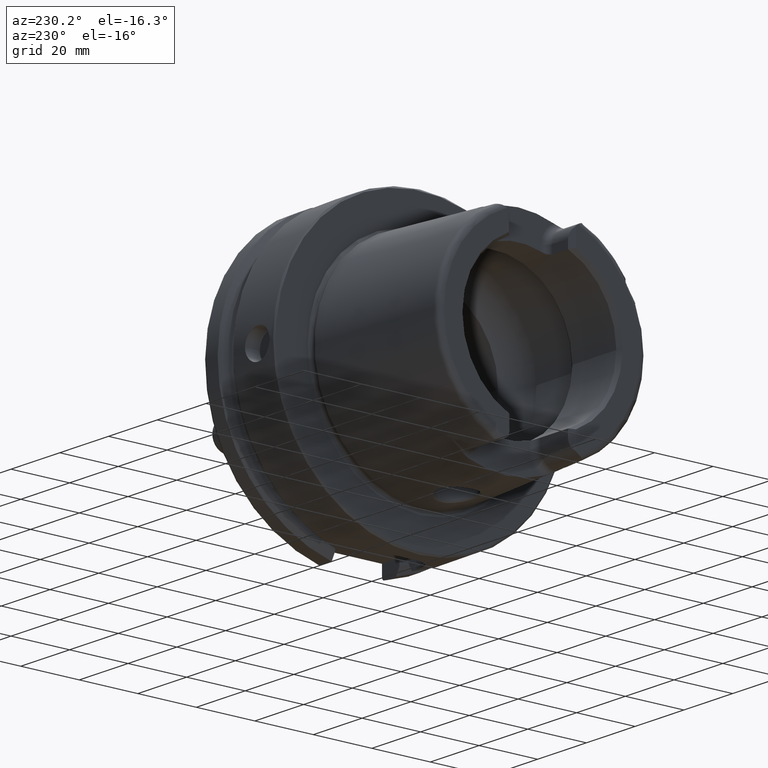
[diagram: clean part render]
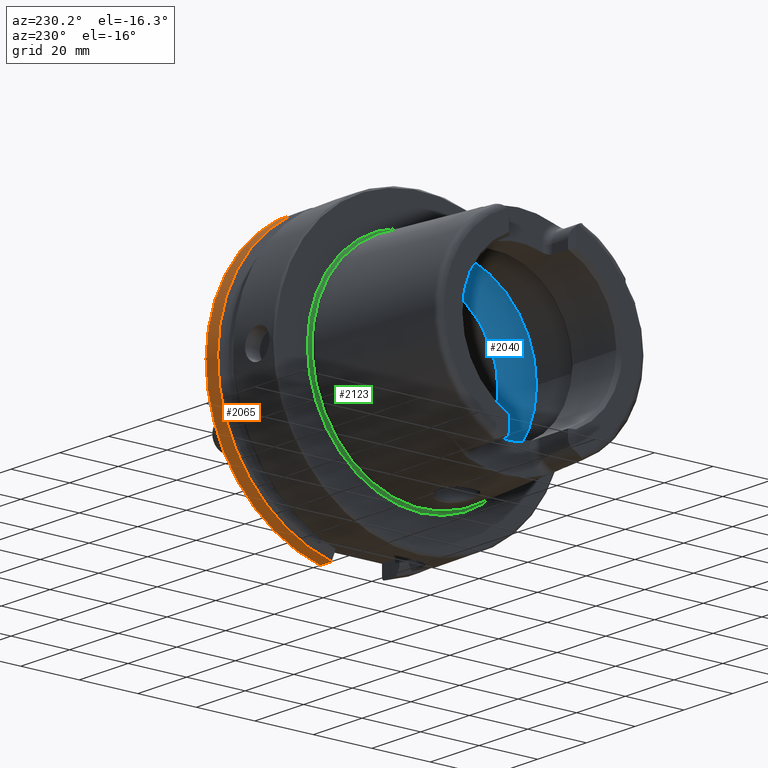
[diagram: same view with three faces highlighted in distinct colors, each labeled with its STEP entity id]
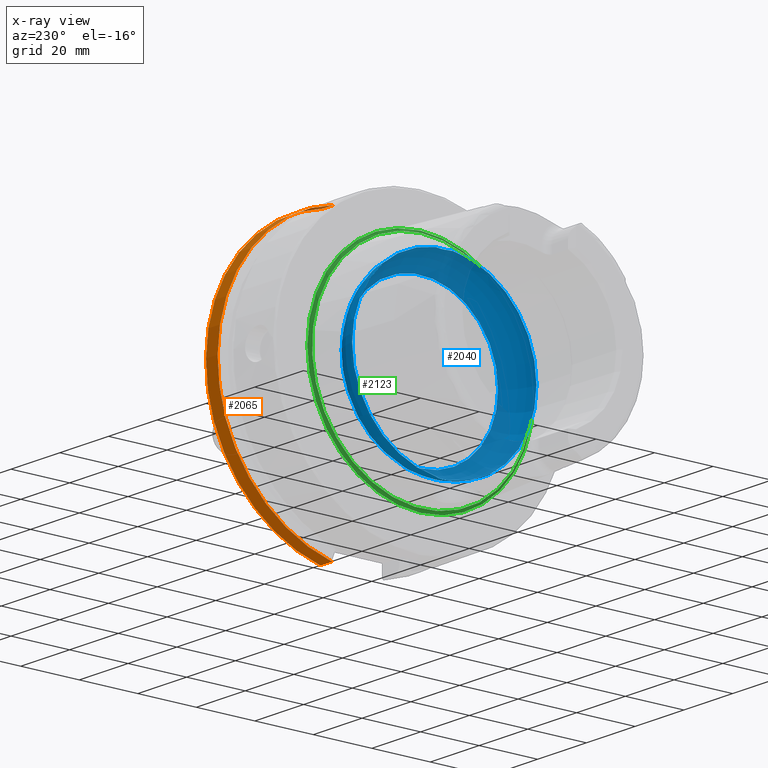
[diagram: x-ray of the same camera — body ghosted, the three highlighted faces saturated]
A machine part, auxiliary view with three faces highlighted in distinct colors.
The next image is the same camera in x-ray (body ghosted, the three faces saturated) — at least one of them is partly hidden behind the body in this view.
Their STEP definitions:

[orange] entity #2065 — the highlighted cylindrical surface (partial cylindrical patch) has radius 50 mm, axis along (1, 0, 0).
#116=CYLINDRICAL_SURFACE('',#2291,50.);
#252=LINE('',#4296,#359);
#262=LINE('',#4378,#369);
#359=VECTOR('',#2746,10.);
#369=VECTOR('',#2782,10.);
#475=FACE_OUTER_BOUND('',#603,.T.);
#603=EDGE_LOOP('',(#1697,#1698,#1699,#1700));
#741=CIRCLE('',#2288,50.);
#743=CIRCLE('',#2292,50.);
#949=VERTEX_POINT('',#4246);
#957=VERTEX_POINT('',#4292);
#969=VERTEX_POINT('',#4361);
#970=VERTEX_POINT('',#4376);
#1219=EDGE_CURVE('',#949,#957,#252,.T.);
#1236=EDGE_CURVE('',#949,#969,#741,.T.);
#1239=EDGE_CURVE('',#957,#970,#743,.T.);
#1240=EDGE_CURVE('',#970,#969,#262,.T.);
#1697=ORIENTED_EDGE('',*,*,#1219,.T.);
#1698=ORIENTED_EDGE('',*,*,#1239,.T.);
#1699=ORIENTED_EDGE('',*,*,#1240,.T.);
#1700=ORIENTED_EDGE('',*,*,#1236,.F.);
#2065=ADVANCED_FACE('',(#475),#116,.T.);
#2288=AXIS2_PLACEMENT_3D('',#4362,#2772,#2773);
#2291=AXIS2_PLACEMENT_3D('',#4375,#2778,#2779);
#2292=AXIS2_PLACEMENT_3D('',#4377,#2780,#2781);
#2746=DIRECTION('',(-1.,0.,0.));
#2772=DIRECTION('center_axis',(1.,0.,0.));
#2773=DIRECTION('ref_axis',(0.,0.,-1.));
#2778=DIRECTION('center_axis',(1.,0.,0.));
#2779=DIRECTION('ref_axis',(0.,1.,0.));
#2780=DIRECTION('center_axis',(1.,0.,0.));
#2781=DIRECTION('ref_axis',(0.,0.,-1.));
#2782=DIRECTION('',(1.,0.,0.));
#4246=CARTESIAN_POINT('',(28.,11.,-48.7749935930288));
#4292=CARTESIAN_POINT('',(23.2620290209214,11.,-48.7749935930288));
#4296=CARTESIAN_POINT('',(25.6310145104607,11.,-48.7749935930288));
#4361=CARTESIAN_POINT('',(28.,10.,48.9897948556636));
#4362=CARTESIAN_POINT('Origin',(28.,0.,0.));
#4375=CARTESIAN_POINT('Origin',(25.6310145104607,0.,0.));
#4376=CARTESIAN_POINT('',(23.2620290209214,10.,48.9897948556636));
#4377=CARTESIAN_POINT('Origin',(23.2620290209214,0.,0.));
#4378=CARTESIAN_POINT('',(25.6310145104607,10.,48.9897948556636));

[blue] entity #2040 — the highlighted toroidal blend (fillet) surface has major radius 19.5 mm and minor (blend) radius 12 mm.
#60=B_SPLINE_CURVE_WITH_KNOTS('',3,(#3687,#3688,#3689,#3690,#3691,#3692,
#3693,#3694,#3695,#3696),.UNSPECIFIED.,.F.,.F.,(4,2,2,2,4),(-0.606113644645353,
-0.532141714710631,-0.407956541554012,-0.344441109025195,-0.303157612487306),
 .UNSPECIFIED.);
#62=B_SPLINE_CURVE_WITH_KNOTS('',3,(#3729,#3730,#3731,#3732,#3733,#3734,
#3735,#3736,#3737,#3738),.UNSPECIFIED.,.F.,.F.,(4,2,2,2,4),(-0.303157612487306,
-0.297161587155601,-0.247817233363509,-0.174446982686599,0.),
 .UNSPECIFIED.);
#65=B_SPLINE_CURVE_WITH_KNOTS('',3,(#3879,#3880,#3881,#3882,#3883,#3884,
#3885,#3886,#3887,#3888),.UNSPECIFIED.,.F.,.F.,(4,2,2,2,4),(-0.606113644645388,
-0.532141714710621,-0.407956541553997,-0.344441109025146,-0.303157612487227),
 .UNSPECIFIED.);
#67=B_SPLINE_CURVE_WITH_KNOTS('',3,(#3921,#3922,#3923,#3924,#3925,#3926,
#3927,#3928,#3929,#3930),.UNSPECIFIED.,.F.,.F.,(4,2,2,2,4),(-0.303157612487227,
-0.297161587155532,-0.247817233363497,-0.174446982686607,0.),
 .UNSPECIFIED.);
#450=FACE_OUTER_BOUND('',#575,.T.);
#575=EDGE_LOOP('',(#1533,#1534,#1535,#1536,#1537,#1538,#1539,#1540,#1541,
#1542,#1543));
#712=CIRCLE('',#2235,31.5);
#715=CIRCLE('',#2238,31.5);
#716=CIRCLE('',#2239,31.5);
#717=CIRCLE('',#2241,26.5);
#718=CIRCLE('',#2242,26.5);
#719=CIRCLE('',#2243,12.);
#890=VERTEX_POINT('',#3684);
#891=VERTEX_POINT('',#3686);
#892=VERTEX_POINT('',#3697);
#895=VERTEX_POINT('',#3877);
#896=VERTEX_POINT('',#3878);
#897=VERTEX_POINT('',#3889);
#898=VERTEX_POINT('',#3933);
#901=VERTEX_POINT('',#3943);
#902=VERTEX_POINT('',#3944);
#1128=EDGE_CURVE('',#891,#890,#60,.T.);
#1130=EDGE_CURVE('',#890,#892,#62,.T.);
#1134=EDGE_CURVE('',#895,#896,#65,.T.);
#1136=EDGE_CURVE('',#896,#897,#67,.T.);
#1138=EDGE_CURVE('',#898,#895,#712,.T.);
#1142=EDGE_CURVE('',#892,#898,#715,.T.);
#1143=EDGE_CURVE('',#897,#891,#716,.T.);
#1144=EDGE_CURVE('',#901,#902,#717,.T.);
#1145=EDGE_CURVE('',#902,#901,#718,.T.);
#1146=EDGE_CURVE('',#902,#890,#719,.T.);
#1533=ORIENTED_EDGE('',*,*,#1144,.F.);
#1534=ORIENTED_EDGE('',*,*,#1145,.F.);
#1535=ORIENTED_EDGE('',*,*,#1146,.T.);
#1536=ORIENTED_EDGE('',*,*,#1130,.T.);
#1537=ORIENTED_EDGE('',*,*,#1142,.T.);
#1538=ORIENTED_EDGE('',*,*,#1138,.T.);
#1539=ORIENTED_EDGE('',*,*,#1134,.T.);
#1540=ORIENTED_EDGE('',*,*,#1136,.T.);
#1541=ORIENTED_EDGE('',*,*,#1143,.T.);
#1542=ORIENTED_EDGE('',*,*,#1128,.T.);
#1543=ORIENTED_EDGE('',*,*,#1146,.F.);
#1981=TOROIDAL_SURFACE('',#2240,19.5,12.);
#2040=ADVANCED_FACE('',(#450),#1981,.F.);
#2235=AXIS2_PLACEMENT_3D('',#3934,#2628,#2629);
#2238=AXIS2_PLACEMENT_3D('',#3940,#2635,#2636);
#2239=AXIS2_PLACEMENT_3D('',#3941,#2637,#2638);
#2240=AXIS2_PLACEMENT_3D('',#3942,#2639,#2640);
#2241=AXIS2_PLACEMENT_3D('',#3945,#2641,#2642);
#2242=AXIS2_PLACEMENT_3D('',#3946,#2643,#2644);
#2243=AXIS2_PLACEMENT_3D('',#3947,#2645,#2646);
#2628=DIRECTION('center_axis',(-1.,0.,0.));
#2629=DIRECTION('ref_axis',(0.,0.,1.));
#2635=DIRECTION('center_axis',(-1.,0.,0.));
#2636=DIRECTION('ref_axis',(0.,0.,1.));
#2637=DIRECTION('center_axis',(-1.,0.,0.));
#2638=DIRECTION('ref_axis',(0.,0.,1.));
#2639=DIRECTION('center_axis',(-1.,0.,0.));
#2640=DIRECTION('ref_axis',(0.,0.,1.));
#2641=DIRECTION('center_axis',(-1.,0.,0.));
#2642=DIRECTION('ref_axis',(0.,0.,1.));
#2643=DIRECTION('center_axis',(-1.,0.,0.));
#2644=DIRECTION('ref_axis',(0.,0.,1.));
#2645=DIRECTION('center_axis',(0.,1.,-1.22464679914735E-16));
#2646=DIRECTION('ref_axis',(0.,-1.22464679914735E-16,-1.));
#3684=CARTESIAN_POINT('',(-9.,8.53116613017712E-16,-31.4767398822284));
#3686=CARTESIAN_POINT('',(-9.74679434480896,2.89893607109041,-31.3663222207471));
#3687=CARTESIAN_POINT('Ctrl Pts',(-9.74679434480898,2.89893607109041,-31.3663222207471));
#3688=CARTESIAN_POINT('Ctrl Pts',(-9.62803941549252,2.68373847757038,-31.3862111979079));
#3689=CARTESIAN_POINT('Ctrl Pts',(-9.52250794022164,2.46123932380009,-31.4027818190648));
#3690=CARTESIAN_POINT('Ctrl Pts',(-9.27707880675082,1.84905941644996,-31.4398086116956));
#3691=CARTESIAN_POINT('Ctrl Pts',(-9.16318715371328,1.45014848778478,-31.4552463037839));
#3692=CARTESIAN_POINT('Ctrl Pts',(-9.05448554629564,0.83406948853474,-31.4697090180031));
#3693=CARTESIAN_POINT('Ctrl Pts',(-9.02875508102837,0.623753972628784,-31.4730355369691));
#3694=CARTESIAN_POINT('Ctrl Pts',(-9.00473516300901,0.275210595137741,-31.4761342948647));
#3695=CARTESIAN_POINT('Ctrl Pts',(-9.,0.13762179988616,-31.4767398822284));
#3696=CARTESIAN_POINT('Ctrl Pts',(-9.,9.71445146547012E-16,-31.4767398822284));
#3697=CARTESIAN_POINT('',(-9.74679434480896,-2.89893607109041,-31.3663222207471));
#3729=CARTESIAN_POINT('Ctrl Pts',(-9.,9.83483832277069E-16,-31.4767398822284));
#3730=CARTESIAN_POINT('Ctrl Pts',(-9.,-0.0199882245331354,-31.4767398822284));
#3731=CARTESIAN_POINT('Ctrl Pts',(-9.00009988237686,-0.0399771452902417,
-31.4767270717783));
#3732=CARTESIAN_POINT('Ctrl Pts',(-9.00194380057016,-0.224464346212316,
-31.4764905359115));
#3733=CARTESIAN_POINT('Ctrl Pts',(-9.01035297969853,-0.388827878343727,
-31.4754151841588));
#3734=CARTESIAN_POINT('Ctrl Pts',(-9.0480310904853,-0.796171644009328,-31.4705320701686));
#3735=CARTESIAN_POINT('Ctrl Pts',(-9.08543037238412,-1.03809779370842,-31.4656619259797));
#3736=CARTESIAN_POINT('Ctrl Pts',(-9.26119500081336,-1.84501079512327,-31.441850680052));
#3737=CARTESIAN_POINT('Ctrl Pts',(-9.4667592962906,-2.39148034786879,-31.4132222586341));
#3738=CARTESIAN_POINT('Ctrl Pts',(-9.74679434480898,-2.89893607109041,-31.3663222207471));
#3877=CARTESIAN_POINT('',(-9.74679434480896,-2.89893607109042,31.3663222207471));
#3878=CARTESIAN_POINT('',(-8.99999999999999,7.8372767397864E-16,31.4767398822284));
#3879=CARTESIAN_POINT('Ctrl Pts',(-9.74679434480898,-2.89893607109042,31.3663222207471));
#3880=CARTESIAN_POINT('Ctrl Pts',(-9.62803941549257,-2.6837384775705,31.3862111979079));
#3881=CARTESIAN_POINT('Ctrl Pts',(-9.52250794022172,-2.46123932380032,31.4027818190648));
#3882=CARTESIAN_POINT('Ctrl Pts',(-9.27707880675083,-1.84905941645004,31.4398086116956));
#3883=CARTESIAN_POINT('Ctrl Pts',(-9.16318715371328,-1.45014848778485,31.4552463037839));
#3884=CARTESIAN_POINT('Ctrl Pts',(-9.05448554629561,-0.834069488534672,
31.4697090180031));
#3885=CARTESIAN_POINT('Ctrl Pts',(-9.02875508102836,-0.623753972628598,
31.4730355369691));
#3886=CARTESIAN_POINT('Ctrl Pts',(-9.00473516300902,-0.275210595137865,
31.4761342948647));
#3887=CARTESIAN_POINT('Ctrl Pts',(-8.99999999999999,-0.137621799886392,
31.4767398822284));
#3888=CARTESIAN_POINT('Ctrl Pts',(-8.99999999999999,9.0205620750794E-16,
31.4767398822284));
#3889=CARTESIAN_POINT('',(-9.74679434480896,2.89893607109042,31.3663222207471));
#3921=CARTESIAN_POINT('Ctrl Pts',(-8.99999999999999,8.7920239009422E-16,
31.4767398822284));
#3922=CARTESIAN_POINT('Ctrl Pts',(-8.99999999999999,0.0199882245331231,
31.4767398822284));
#3923=CARTESIAN_POINT('Ctrl Pts',(-9.00009988237684,0.0399771452902225,
31.4767270717783));
#3924=CARTESIAN_POINT('Ctrl Pts',(-9.00194380057014,0.224464346212396,31.4764905359115));
#3925=CARTESIAN_POINT('Ctrl Pts',(-9.01035297969852,0.388827878343765,31.4754151841588));
#3926=CARTESIAN_POINT('Ctrl Pts',(-9.0480310904853,0.79617164400948,31.4705320701686));
#3927=CARTESIAN_POINT('Ctrl Pts',(-9.08543037238414,1.03809779370849,31.4656619259797));
#3928=CARTESIAN_POINT('Ctrl Pts',(-9.26119500081334,1.84501079512323,31.441850680052));
#3929=CARTESIAN_POINT('Ctrl Pts',(-9.46675929629059,2.39148034786878,31.4132222586341));
#3930=CARTESIAN_POINT('Ctrl Pts',(-9.74679434480898,2.89893607109043,31.3663222207471));
#3933=CARTESIAN_POINT('',(-9.74679434480896,-31.5,3.85763741731416E-15));
#3934=CARTESIAN_POINT('Origin',(-9.74679434480896,0.,0.));
#3940=CARTESIAN_POINT('Origin',(-9.74679434480896,0.,0.));
#3941=CARTESIAN_POINT('Origin',(-9.74679434480896,0.,0.));
#3942=CARTESIAN_POINT('Origin',(-9.74679434480896,0.,0.));
#3943=CARTESIAN_POINT('',(0.,-26.5,3.24531401774049E-15));
#3944=CARTESIAN_POINT('',(0.,-3.24531401774049E-15,-26.5));
#3945=CARTESIAN_POINT('Origin',(0.,0.,0.));
#3946=CARTESIAN_POINT('Origin',(0.,0.,0.));
#3947=CARTESIAN_POINT('Origin',(-9.74679434480896,-2.38806125833734E-15,
-19.5));

[green] entity #2123 — the highlighted toroidal blend (fillet) surface has major radius 38.5073 mm and minor (blend) radius 0.8 mm.
#533=FACE_OUTER_BOUND('',#665,.T.);
#665=EDGE_LOOP('',(#1971,#1972,#1973,#1974,#1975,#1976));
#787=CIRCLE('',#2382,38.6186400839745);
#788=CIRCLE('',#2383,38.6186400839745);
#798=CIRCLE('',#2404,37.7073016032064);
#799=CIRCLE('',#2405,37.7073016032064);
#800=CIRCLE('',#2407,0.8);
#1004=VERTEX_POINT('',#4601);
#1005=VERTEX_POINT('',#4602);
#1009=VERTEX_POINT('',#4631);
#1010=VERTEX_POINT('',#4632);
#1315=EDGE_CURVE('',#1004,#1005,#787,.T.);
#1316=EDGE_CURVE('',#1005,#1004,#788,.T.);
#1329=EDGE_CURVE('',#1009,#1010,#798,.T.);
#1331=EDGE_CURVE('',#1010,#1009,#799,.T.);
#1332=EDGE_CURVE('',#1010,#1005,#800,.T.);
#1971=ORIENTED_EDGE('',*,*,#1329,.T.);
#1972=ORIENTED_EDGE('',*,*,#1332,.T.);
#1973=ORIENTED_EDGE('',*,*,#1315,.F.);
#1974=ORIENTED_EDGE('',*,*,#1316,.F.);
#1975=ORIENTED_EDGE('',*,*,#1332,.F.);
#1976=ORIENTED_EDGE('',*,*,#1331,.T.);
#2003=TOROIDAL_SURFACE('',#2406,38.5073016032064,0.8);
#2123=ADVANCED_FACE('',(#533),#2003,.F.);
#2382=AXIS2_PLACEMENT_3D('',#4603,#2983,#2984);
#2383=AXIS2_PLACEMENT_3D('',#4604,#2985,#2986);
#2404=AXIS2_PLACEMENT_3D('',#4633,#3030,#3031);
#2405=AXIS2_PLACEMENT_3D('',#4635,#3033,#3034);
#2406=AXIS2_PLACEMENT_3D('',#4636,#3035,#3036);
#2407=AXIS2_PLACEMENT_3D('',#4637,#3037,#3038);
#2983=DIRECTION('center_axis',(1.,0.,0.));
#2984=DIRECTION('ref_axis',(0.,0.,-1.));
#2985=DIRECTION('center_axis',(1.,0.,0.));
#2986=DIRECTION('ref_axis',(0.,0.,-1.));
#3030=DIRECTION('center_axis',(1.,0.,0.));
#3031=DIRECTION('ref_axis',(0.,0.,-1.));
#3033=DIRECTION('center_axis',(1.,0.,0.));
#3034=DIRECTION('ref_axis',(0.,0.,-1.));
#3035=DIRECTION('center_axis',(1.,0.,0.));
#3036=DIRECTION('ref_axis',(0.,0.,-1.));
#3037=DIRECTION('center_axis',(0.,-1.,-1.22464679914735E-16));
#3038=DIRECTION('ref_axis',(0.,-1.22464679914735E-16,1.));
#4601=CARTESIAN_POINT('',(0.0922144549932558,-38.6186400839745,-4.7294193966263E-15));
#4602=CARTESIAN_POINT('',(0.0922144549932559,-4.7294193966263E-15,38.6186400839745));
#4603=CARTESIAN_POINT('Origin',(0.0922144549932559,0.,0.));
#4604=CARTESIAN_POINT('Origin',(0.0922144549932559,0.,0.));
#4631=CARTESIAN_POINT('',(-0.7,-37.7073016032064,-4.61781262128506E-15));
#4632=CARTESIAN_POINT('',(-0.7,-4.61781262128506E-15,37.7073016032064));
#4633=CARTESIAN_POINT('Origin',(-0.7,0.,0.));
#4635=CARTESIAN_POINT('Origin',(-0.7,0.,0.));
#4636=CARTESIAN_POINT('Origin',(-0.7,0.,0.));
#4637=CARTESIAN_POINT('Origin',(-0.7,-4.71578436521685E-15,38.5073016032064));